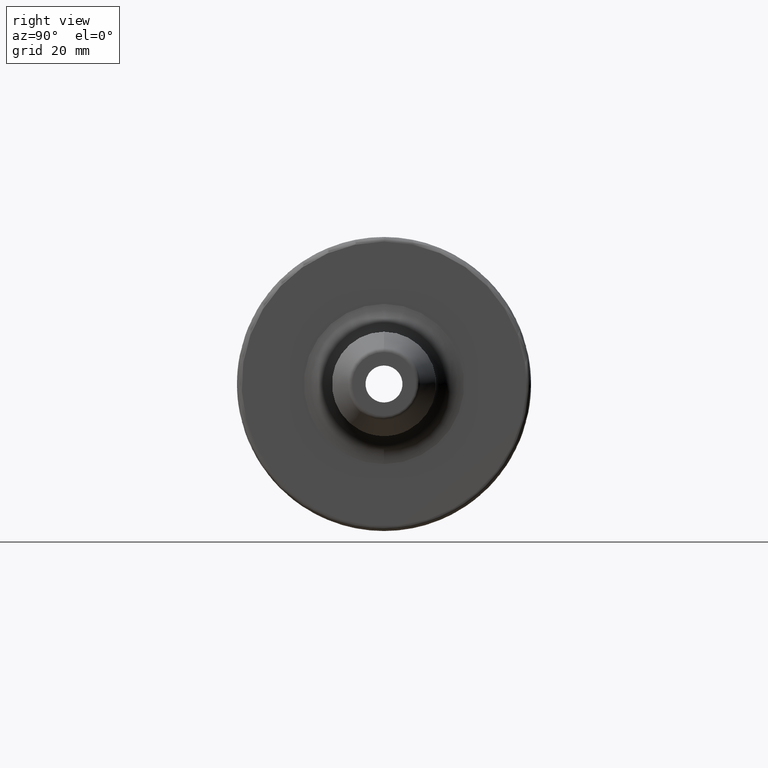
[diagram: clean part render]
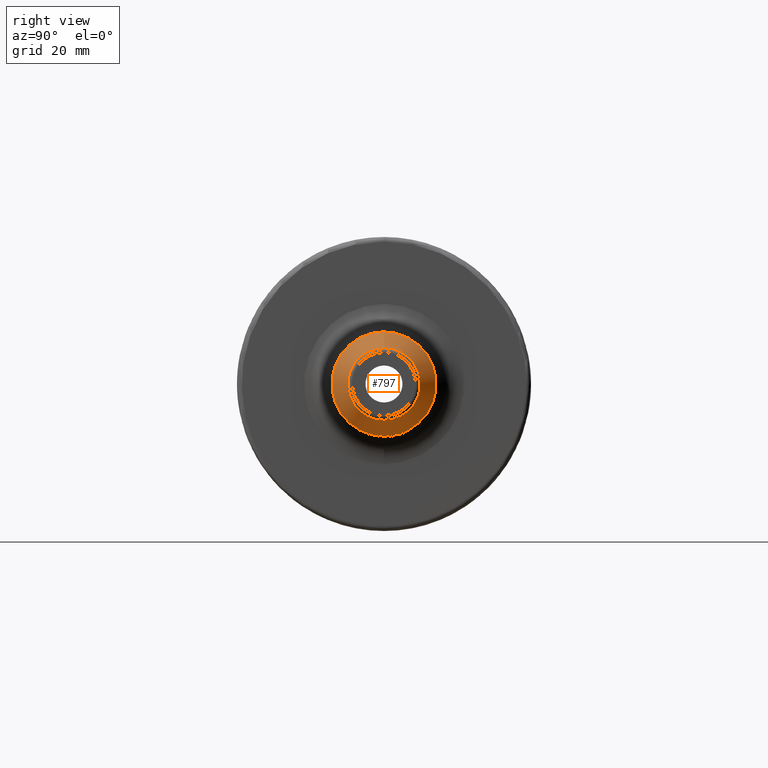
[diagram: same view with one face highlighted and labeled with its STEP entity id]
A machine part, right view. The second image highlights one B-rep face of the part: STEP entity #797.
In plain terms, the highlighted conical surface has half-angle 25 deg.
Its self-contained STEP definition (entity closure, byte-faithful):
#34=CONICAL_SURFACE('',#874,9.338,0.436332312998581);
#59=CIRCLE('',#867,11.176);
#64=CIRCLE('',#873,7.76923752622916);
#132=FACE_OUTER_BOUND('',#182,.T.);
#182=EDGE_LOOP('',(#565,#566,#567,#568));
#255=LINE('',#1424,#301);
#301=VECTOR('',#992,9.338);
#348=VERTEX_POINT('',#1410);
#352=VERTEX_POINT('',#1420);
#429=EDGE_CURVE('',#348,#348,#59,.T.);
#435=EDGE_CURVE('',#352,#352,#64,.T.);
#436=EDGE_CURVE('',#352,#348,#255,.T.);
#565=ORIENTED_EDGE('',*,*,#435,.F.);
#566=ORIENTED_EDGE('',*,*,#436,.T.);
#567=ORIENTED_EDGE('',*,*,#429,.T.);
#568=ORIENTED_EDGE('',*,*,#436,.F.);
#797=ADVANCED_FACE('',(#132),#34,.T.);
#867=AXIS2_PLACEMENT_3D('',#1411,#975,#976);
#873=AXIS2_PLACEMENT_3D('',#1422,#988,#989);
#874=AXIS2_PLACEMENT_3D('',#1423,#990,#991);
#975=DIRECTION('center_axis',(1.,0.,0.));
#976=DIRECTION('ref_axis',(0.,0.,-1.));
#988=DIRECTION('center_axis',(1.,0.,0.));
#989=DIRECTION('ref_axis',(0.,0.,1.));
#990=DIRECTION('center_axis',(-1.,0.,0.));
#991=DIRECTION('ref_axis',(0.,0.,-1.));
#992=DIRECTION('',(-0.90630778703665,-5.17558101501965E-17,0.422618261740699));
#1410=CARTESIAN_POINT('',(55.6167925602068,-1.36866526272708E-15,11.176));
#1411=CARTESIAN_POINT('Origin',(55.6167925602068,0.,0.));
#1420=CARTESIAN_POINT('',(62.9226182617407,-9.51457186831204E-16,7.76923752622916));
#1422=CARTESIAN_POINT('Origin',(62.9226182617407,-9.51457186831204E-16,
0.));
#1423=CARTESIAN_POINT('Origin',(59.5583962801034,0.,0.));
#1424=CARTESIAN_POINT('',(59.5583962801034,-1.1435751810438E-15,9.338));